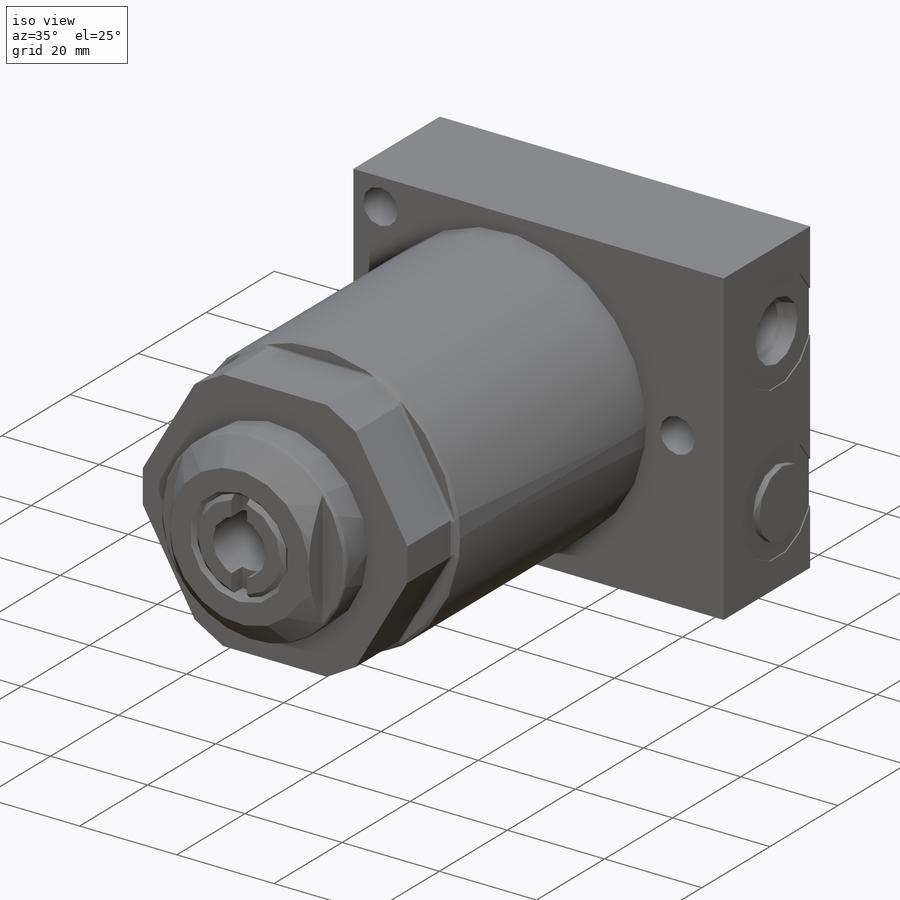
[diagram: iso view]
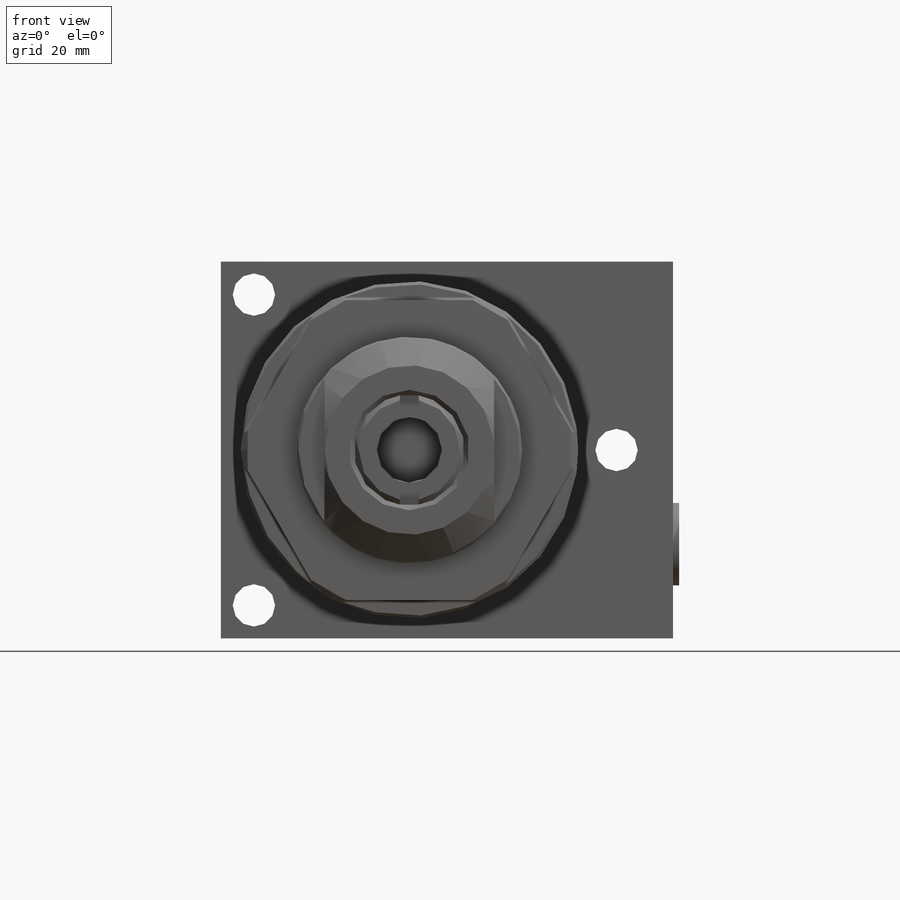
[diagram: front view]
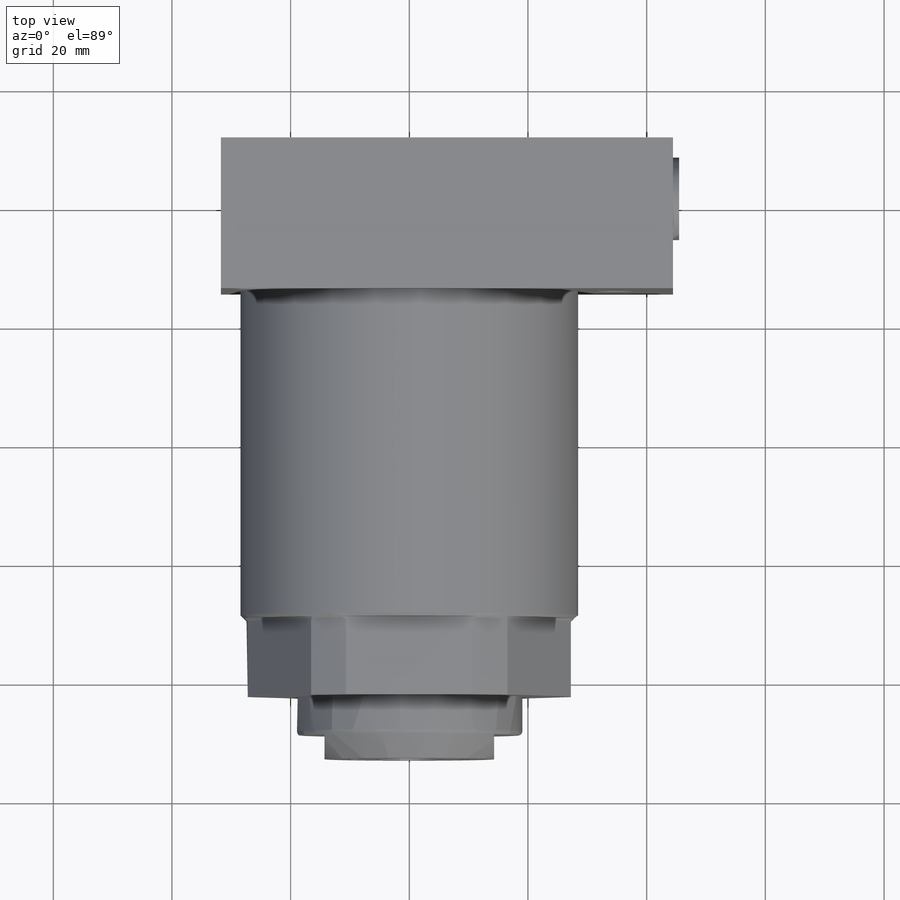
[diagram: top view]
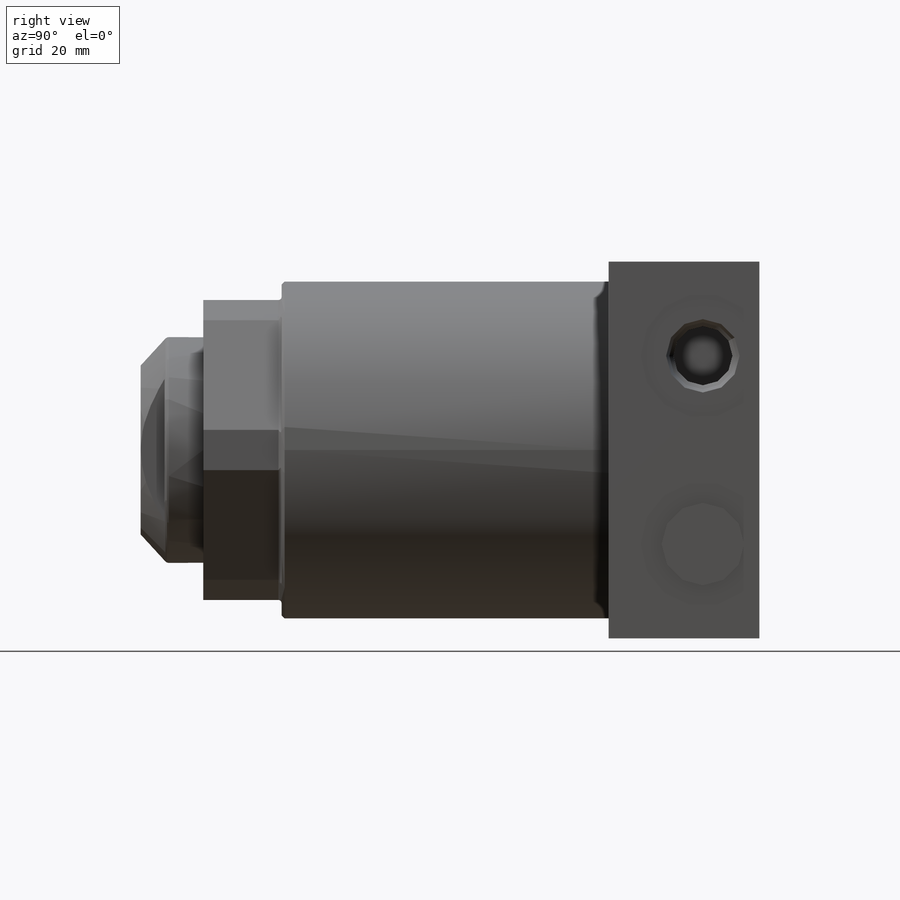
[diagram: right view]
SOLIDWORKS PART (.sldprt)
format: sldprt  version: not decoded by parser v0  size: 424,960 bytes
history: native  units: mm
features: sketch x17, plane x9, cut_revolve x6, cut_extrude x5, extrude x3, material x1, revolve x1, pattern_circular x1, hole x1 (+13 scaffold rows collapsed)
feature tree (57):
  scaffold x13  (default folders/planes/origin — collapsed)
  material  "Alloy Steel"
  plane  "Plane1"
  sketch  "Sketch1"  dims[D1=56.896mm]
  extrude  "Extrude1"  Depth=82.55mm
  plane  "Plane2"
  sketch  "Sketch2"  dims[D2=0.508mm D1=50.546mm D3=13.208mm]
  cut_extrude  "Cut-Extrude1"  Depth=68.2752mm
  plane  "Plane12"
  sketch  "Sketch10"  dims[c1.D1=54.864mm c1.D2=12.7mm c1.D3=1.016mm c2.D3=45.0deg]
  cut_revolve  "Cut-Revolve1"  Angle=360deg
  plane  "Plane15"
  sketch  "Sketch13"  dims[D1=38.1254mm D2=10.541mm]
  revolve  "Revolve1"  Angle=360deg
  plane  "Plane16"
  sketch  "S2D0011"  dims[D1=10.9982mm D2=16.002mm]
  cut_revolve  "Cut-Revolve4"  Angle=360deg
  plane  "Plane17"
  sketch  "Sketch15"  dims[D2=0.7874mm D1=28.575mm D3=4.7498mm]
  cut_revolve  "Cut-Revolve5"  Angle=360deg
  plane  "Plane18"
  sketch  "Sketch16"  dims[D1=11.176mm D2=76.2mm D3=31.75mm D4=25.4mm]
  extrude  "Extrude2"  Depth=31.75mm
  sketch  "Sketch17"
  cut_extrude  "Cut-Extrude9"  Depth=0.254mm
  sketch  "Sketch18"
  cut_extrude  "Cut-Extrude10"  Depth=0.254mm
  plane  "Plane19"
  sketch  "S2D0002"  dims[D1=17.272mm]
  cut_revolve  "Cut-Revolve6"  Angle=360deg
  plane  "Plane20"
  sketch  "S2D0001"  dims[D1=17.272mm]
  cut_revolve  "Cut-Revolve7"  Angle=360deg
  sketch  "Sketch21"
  extrude  "Extrude3"  Depth=1.27mm
  pattern_circular  "CirPattern2"  Count=6 Angle=360deg
  hole  "Hole1"  Diameter=7.1374mm Depth=25.4mm
  sketch  "Sketch23"  dims[c1.D1=34.925mm c1.D2=26.1874mm c1.D3=26.1874mm c2.D2=26.1874mm c2.D4=52.3748mm]
  sketch  "Sketch22"  dims[Diameter=7.1374mm Depth=25.4mm]
  sketch  "Sketch24"  dims[c1.D1=9.3472mm c1.D2=1.6256mm c1.D3=0.8128mm c2.D3=90.0deg c2.D4=0.8128mm c3.D4=45.0deg]
  cut_revolve  "Cut-Revolve8"  Angle=360deg
  sketch  "Sketch25"  dims[D1=3.175mm]
  cut_extrude  "Cut-Extrude11"  Depth=3.175mm
  sketch  "Sketch26"  dims[D1=28.575mm]
  cut_extrude  "Cut-Extrude12"  Depth=4.0386mm
decode coverage: 31 of 34 modeling features carry decoded parameters
note: suppression state not decoded; provenance and decode notes live in map.json
